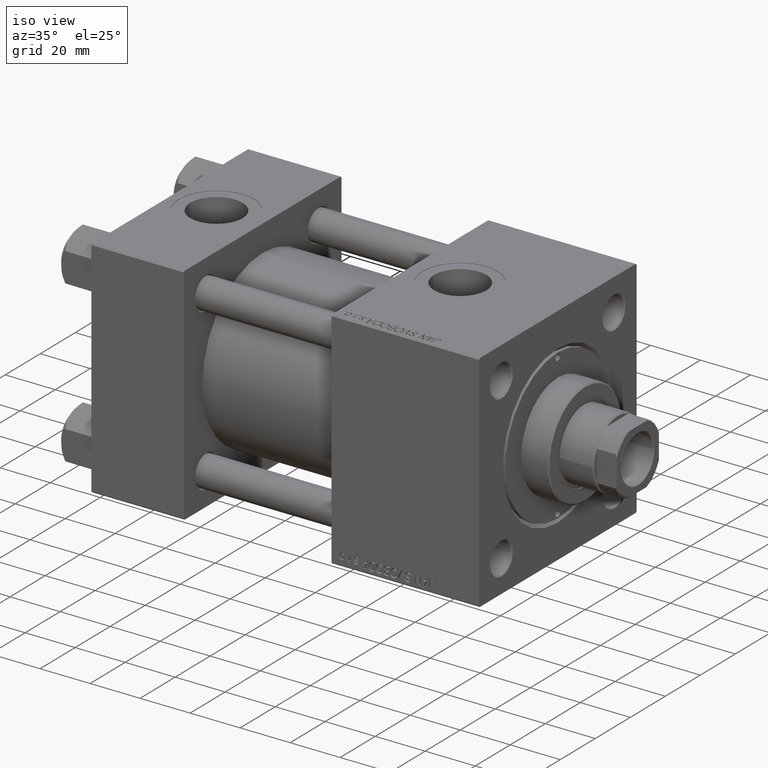
[diagram: clean part render]
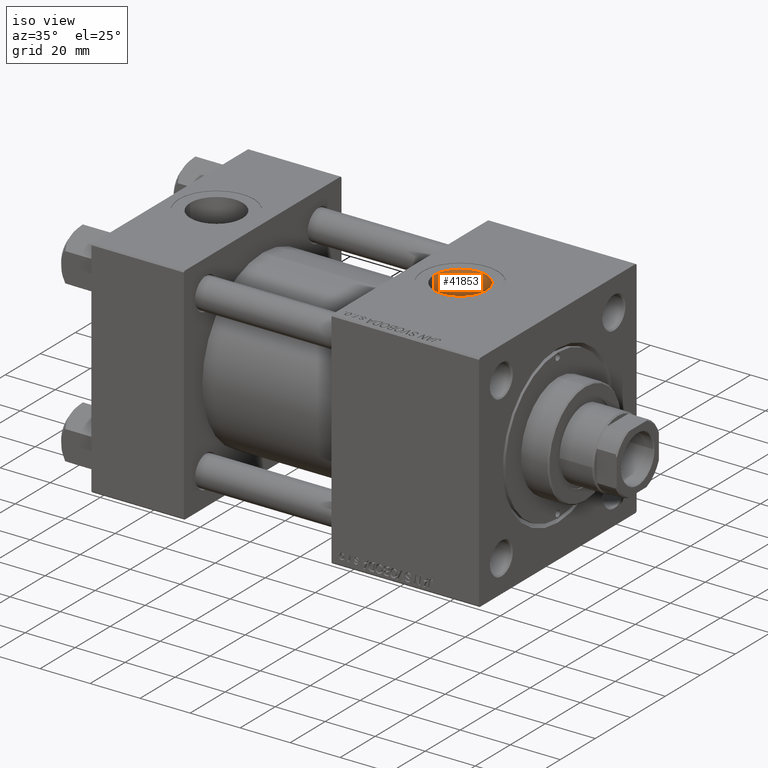
[diagram: same view with one face highlighted and labeled with its STEP entity id]
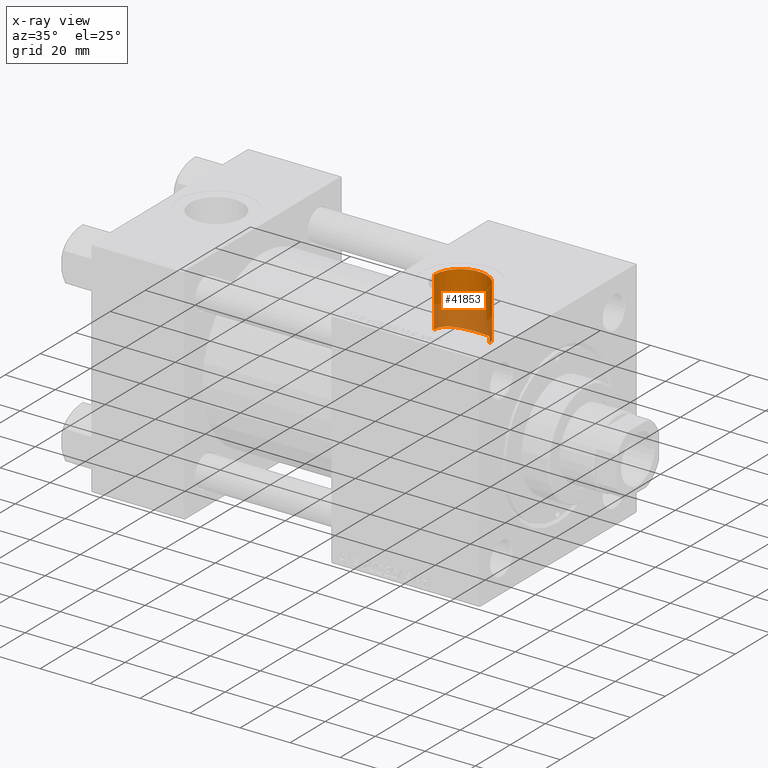
[diagram: x-ray of the same camera — body ghosted, the highlighted face saturated]
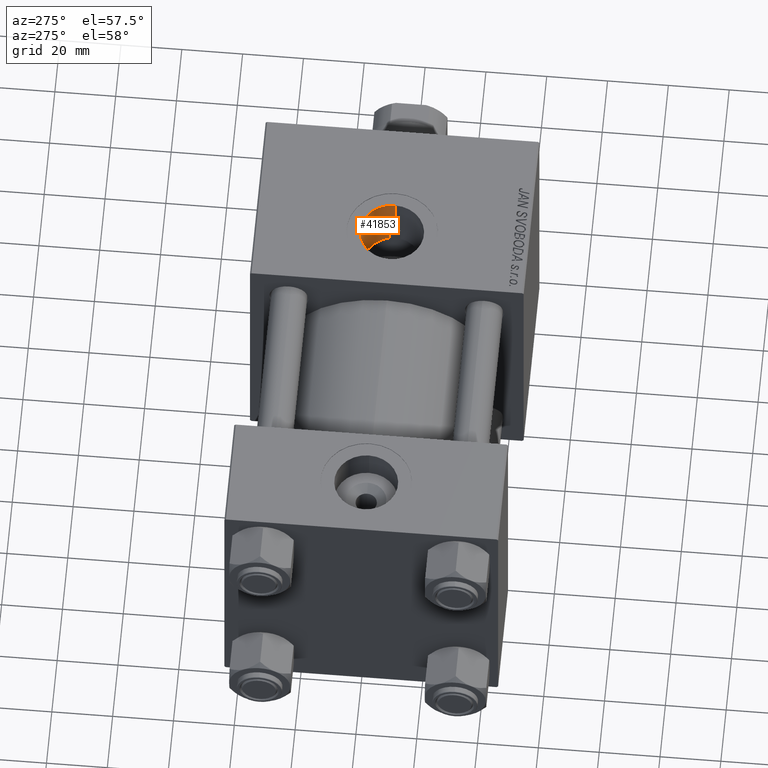
[diagram: same view with one face highlighted and labeled with its STEP entity id]
A machine part, iso view. The second image highlights one B-rep face of the part: STEP entity #41853.
The next image is the same camera in x-ray: the body ghosted, the highlighted face saturated — about 46% of this face is hidden behind the body in this view.
A second angle (auxiliary view) of the same face is appended — the face is thin or edge-on in the first view.
In plain terms, the highlighted cylindrical surface (edge-blend (fillet) strip) has radius 10.48 mm, axis along (0, 0, -1).
Its self-contained STEP definition (entity closure, byte-faithful):
#1501 = CARTESIAN_POINT ( 'NONE',  ( 106.7671663617161357, 4.999617035179606539, 24.50132901008040065 ) ) ;
#2031 = AXIS2_PLACEMENT_3D ( 'NONE', #15118, #42357, #18955 ) ;
#2260 = CARTESIAN_POINT ( 'NONE',  ( 111.8851596875121572, 9.659575400900973108, 23.06052388961923683 ) ) ;
#2294 = DIRECTION ( 'NONE',  ( 0.000000000000000000, 0.000000000000000000, -1.000000000000000000 ) ) ;
#2605 = DIRECTION ( 'NONE',  ( 0.000000000000000000, 0.000000000000000000, -1.000000000000000000 ) ) ;
#3251 = ORIENTED_EDGE ( 'NONE', *, *, #5094, .F. ) ;
#3850 = CARTESIAN_POINT ( 'NONE',  ( 126.4800000000000040, 0.6446704584514654224, 30.00000000000000000 ) ) ;
#4224 = EDGE_CURVE ( 'NONE', #18537, #37850, #15749, .T. ) ;
#5094 = EDGE_CURVE ( 'NONE', #18537, #5298, #46533, .T. ) ;
#5298 = VERTEX_POINT ( 'NONE', #15849 ) ;
#5824 = CARTESIAN_POINT ( 'NONE',  ( 110.7478055748506875, 9.074580334331647791, 23.29559678875702744 ) ) ;
#6323 = CARTESIAN_POINT ( 'NONE',  ( 120.4188195642436199, 9.508309770353220003, 23.12177175093559001 ) ) ;
#6573 = CARTESIAN_POINT ( 'NONE',  ( 125.0727601258625157, 5.255426041479307919, 24.44298397004090262 ) ) ;
#6596 = ORIENTED_EDGE ( 'NONE', *, *, #39931, .F. ) ;
#7347 = ORIENTED_EDGE ( 'NONE', *, *, #4224, .T. ) ;
#9146 = CARTESIAN_POINT ( 'NONE',  ( 105.8381471228398283, 2.583199243602494199, 24.86817457876016491 ) ) ;
#9906 = CARTESIAN_POINT ( 'NONE',  ( 117.6386177692833286, 10.37204485282558331, 22.74698456315752182 ) ) ;
#10162 = CARTESIAN_POINT ( 'NONE',  ( 121.2812565894447232, 9.074845065222547191, 23.29687364020410811 ) ) ;
#11288 = CARTESIAN_POINT ( 'NONE',  ( 105.5199999999999960, -6.938893903907227589E-15, 44.79999999999999005 ) ) ;
#11962 = CARTESIAN_POINT ( 'NONE',  ( 109.1687481271819706, 7.973357901501731071, 23.69796365038536834 ) ) ;
#12217 = CARTESIAN_POINT ( 'NONE',  ( 105.5199999999999960, 3.061768933645607322E-15, 25.00000000000000000 ) ) ;
#12244 = VECTOR ( 'NONE', #17234, 1000.000000000000000 ) ;
#13230 = CARTESIAN_POINT ( 'NONE',  ( 120.1216041761687165, 9.640975358095740688, 23.06660230998516070 ) ) ;
#13427 = VERTEX_POINT ( 'NONE', #29295 ) ;
#14002 = CARTESIAN_POINT ( 'NONE',  ( 119.5162921391537054, 9.877839664245765761, 22.96616710619939994 ) ) ;
#14036 = CARTESIAN_POINT ( 'NONE',  ( 105.5199999999999960, -6.938893903907227589E-15, 67.79999999999999716 ) ) ;
#14245 = CARTESIAN_POINT ( 'NONE',  ( 124.1771732855569894, 6.585514499373144481, 24.12201144741169401 ) ) ;
#14334 = CARTESIAN_POINT ( 'NONE',  ( 116.0000000000000000, -6.938893903907227589E-15, 67.79999999999999716 ) ) ;
#15118 = CARTESIAN_POINT ( 'NONE',  ( 116.0000000000000000, -6.938893903907227589E-15, 44.79999999999999005 ) ) ;
#15749 = B_SPLINE_CURVE_WITH_KNOTS ( 'NONE', 3,
 ( #46163, #42830, #3850, #38274 ),
 .UNSPECIFIED., .F., .F.,
 ( 4, 4 ),
 ( 0.000000000000000000, 0.001934011375354386698 ),
 .UNSPECIFIED. ) ;
#15849 = CARTESIAN_POINT ( 'NONE',  ( 126.2999999999999972, 1.934011375354389939, 24.92507973909010488 ) ) ;
#16047 = CARTESIAN_POINT ( 'NONE',  ( 105.5356230239824953, 0.6585730766822409654, 24.99343936272600430 ) ) ;
#17234 = DIRECTION ( 'NONE',  ( 0.000000000000000000, 0.000000000000000000, -1.000000000000000000 ) ) ;
#17254 = ORIENTED_EDGE ( 'NONE', *, *, #21007, .T. ) ;
#17826 = CARTESIAN_POINT ( 'NONE',  ( 113.4226261123151716, 10.16335071941091073, 22.84110205403496252 ) ) ;
#18076 = CARTESIAN_POINT ( 'NONE',  ( 110.2019733445123819, 8.735928194877923048, 23.42469629605734127 ) ) ;
#18537 = VERTEX_POINT ( 'NONE', #34829 ) ;
#18955 = DIRECTION ( 'NONE',  ( 1.000000000000000000, 0.000000000000000000, 0.000000000000000000 ) ) ;
#19971 = ORIENTED_EDGE ( 'NONE', *, *, #36968, .F. ) ;
#20027 = VERTEX_POINT ( 'NONE', #30068 ) ;
#20139 = CARTESIAN_POINT ( 'NONE',  ( 106.1232496530287648, 3.519319470400923411, 24.75293856241372836 ) ) ;
#20219 = B_SPLINE_CURVE_WITH_KNOTS ( 'NONE', 3,
 ( #12217, #20393, #16047, #23933, #24691, #35900, #9146, #36412, #20139, #40217, #1501, #31316, #35641, #46857, #11962, #33341, #18076, #5824, #33595, #2260, #44815, #17826, #41476, #45067, #29523, #40734, #48896, #9906, #37171, #28775, #14002, #13230, #6323, #10162, #48385, #25706, #44302, #25205, #49146, #14245, #29767, #6573, #21404, #36921, #25450, #41234, #21892, #32582 ),
 .UNSPECIFIED., .F., .F.,
 ( 4, 2, 2, 2, 2, 2, 2, 2, 2, 2, 2, 2, 2, 2, 2, 2, 2, 2, 2, 2, 2, 2, 2, 4 ),
 ( 0.03121016949216451342, 0.03218464452383351659, 0.03315911955550251977, 0.03413359458717152989, 0.03510806961884053307, 0.03705701968217853248, 0.03900596974551652496, 0.04095491980885451744, 0.04192939484052350674, 0.04290386987219248216, 0.04485281993553048852, 0.04582729496719946394, 0.04680176999886843936, 0.04875072006220640408, 0.05069967012554435493, 0.05167414515721335810, 0.05264862018888236128, 0.05459757025222039539, 0.05557204528388942633, 0.05654652031555845726, 0.05849547037889651913, 0.05946994541056553618, 0.06044442044223456711, 0.06239337050557263592 ),
 .UNSPECIFIED. ) ;
#20393 = CARTESIAN_POINT ( 'NONE',  ( 105.5200000000000102, 0.3287850015386533653, 25.00000000000001066 ) ) ;
#21007 = EDGE_CURVE ( 'NONE', #20027, #5298, #20219, .T. ) ;
#21404 = CARTESIAN_POINT ( 'NONE',  ( 125.2312790006573948, 4.971677288869586597, 24.50241663594839991 ) ) ;
#21892 = CARTESIAN_POINT ( 'NONE',  ( 126.1785022418928435, 2.581074223304206772, 24.87487220027363222 ) ) ;
#22241 = LINE ( 'NONE', #34180, #12244 ) ;
#22473 = CYLINDRICAL_SURFACE ( 'NONE', #30178, 10.48000000000000398 ) ;
#23360 = DIRECTION ( 'NONE',  ( 0.000000000000000000, 0.000000000000000000, -1.000000000000000000 ) ) ;
#23933 = CARTESIAN_POINT ( 'NONE',  ( 105.5968747370656189, 1.308391668130473473, 24.96785615383025814 ) ) ;
#24691 = CARTESIAN_POINT ( 'NONE',  ( 105.6424818341990459, 1.630161534427958081, 24.94884296524732292 ) ) ;
#25205 = CARTESIAN_POINT ( 'NONE',  ( 123.3095492883835362, 7.516882943737513756, 23.84424818912263078 ) ) ;
#25450 = CARTESIAN_POINT ( 'NONE',  ( 125.6493108754359298, 4.101772300320491560, 24.66307610818221718 ) ) ;
#25706 = CARTESIAN_POINT ( 'NONE',  ( 122.5884970808938448, 8.156264676250790657, 23.63297485160378031 ) ) ;
#28775 = CARTESIAN_POINT ( 'NONE',  ( 119.2095190560418416, 9.981685871371876573, 22.92107120454307534 ) ) ;
#29295 = CARTESIAN_POINT ( 'NONE',  ( 126.4800000000000040, -5.655464058400802100E-15, 44.79999999999999005 ) ) ;
#29523 = CARTESIAN_POINT ( 'NONE',  ( 114.7045387977235436, 10.40468030871039318, 22.73199781475518222 ) ) ;
#29690 = EDGE_LOOP ( 'NONE', ( #6596, #19971, #40871, #17254, #3251, #7347 ) ) ;
#29767 = CARTESIAN_POINT ( 'NONE',  ( 124.5621068483242055, 6.077585296273588789, 24.25652138941319436 ) ) ;
#29860 = DIRECTION ( 'NONE',  ( -1.000000000000000000, 0.000000000000000000, 0.000000000000000000 ) ) ;
#30068 = CARTESIAN_POINT ( 'NONE',  ( 105.5199999999999960, 3.061768933645607322E-15, 25.00000000000000000 ) ) ;
#30178 = AXIS2_PLACEMENT_3D ( 'NONE', #14334, #2605, #29860 ) ;
#31316 = CARTESIAN_POINT ( 'NONE',  ( 107.4454009048542815, 6.087710720132601061, 24.25388776972977567 ) ) ;
#32582 = CARTESIAN_POINT ( 'NONE',  ( 126.2999999999999972, 1.934011375354389939, 24.92507973909010488 ) ) ;
#33341 = CARTESIAN_POINT ( 'NONE',  ( 109.9349178649771375, 8.552642181762106333, 23.49243050560861690 ) ) ;
#33595 = CARTESIAN_POINT ( 'NONE',  ( 111.0272351189628068, 9.230614084050129620, 23.23401715973118087 ) ) ;
#34180 = CARTESIAN_POINT ( 'NONE',  ( 126.4800000000000040, -5.655464058400801311E-15, 67.79999999999999716 ) ) ;
#34829 = CARTESIAN_POINT ( 'NONE',  ( 126.2999999999999972, 1.934011375354389939, 29.93759509379468753 ) ) ;
#35641 = CARTESIAN_POINT ( 'NONE',  ( 107.8384609629549260, 6.604990798069032110, 24.11668345353552212 ) ) ;
#35900 = CARTESIAN_POINT ( 'NONE',  ( 105.7631178406935675, 2.267565399210858423, 24.89900277306706755 ) ) ;
#36412 = CARTESIAN_POINT ( 'NONE',  ( 106.0178759252195277, 3.208328409761893596, 24.79527483265623644 ) ) ;
#36921 = CARTESIAN_POINT ( 'NONE',  ( 125.5190933919545273, 4.395560038025625893, 24.61229465162431040 ) ) ;
#36968 = EDGE_CURVE ( 'NONE', #37815, #13427, #41924, .T. ) ;
#37171 = CARTESIAN_POINT ( 'NONE',  ( 118.2768204000753371, 10.25012929133886352, 22.80291826729093074 ) ) ;
#37226 = VECTOR ( 'NONE', #23360, 1000.000000000000000 ) ;
#37815 = VERTEX_POINT ( 'NONE', #11288 ) ;
#37850 = VERTEX_POINT ( 'NONE', #43112 ) ;
#38274 = CARTESIAN_POINT ( 'NONE',  ( 126.4800000000000040, 3.352779466116923030E-15, 30.00000000000000000 ) ) ;
#39931 = EDGE_CURVE ( 'NONE', #13427, #37850, #22241, .T. ) ;
#40217 = CARTESIAN_POINT ( 'NONE',  ( 106.4784251406594962, 4.426244458063012921, 24.61265260054171833 ) ) ;
#40734 = CARTESIAN_POINT ( 'NONE',  ( 115.6733399539854474, 10.49497315035231182, 22.69052503754342354 ) ) ;
#40871 = ORIENTED_EDGE ( 'NONE', *, *, #49471, .T. ) ;
#41234 = CARTESIAN_POINT ( 'NONE',  ( 125.9991942442599822, 3.203101616166324828, 24.80136239248102825 ) ) ;
#41476 = CARTESIAN_POINT ( 'NONE',  ( 113.7430657101277376, 10.23927097569745648, 22.80705355501167020 ) ) ;
#41853 = ADVANCED_FACE ( 'NONE', ( #45640 ), #22473, .F. ) ;
#41924 = CIRCLE ( 'NONE', #2031, 10.48000000000000398 ) ;
#42357 = DIRECTION ( 'NONE',  ( -0.000000000000000000, -0.000000000000000000, -1.000000000000000000 ) ) ;
#42715 = CARTESIAN_POINT ( 'NONE',  ( 126.2999999999999972, 1.934011375354389939, 67.79999999999999716 ) ) ;
#42830 = CARTESIAN_POINT ( 'NONE',  ( 126.4210485436893237, 1.289340916902927958, 29.97924172559974210 ) ) ;
#43112 = CARTESIAN_POINT ( 'NONE',  ( 126.4800000000000040, 3.352779466116923030E-15, 30.00000000000000000 ) ) ;
#44246 = VECTOR ( 'NONE', #2294, 1000.000000000000000 ) ;
#44302 = CARTESIAN_POINT ( 'NONE',  ( 122.8367452354718239, 7.949336738018656590, 23.70358087546936332 ) ) ;
#44815 = CARTESIAN_POINT ( 'NONE',  ( 112.4831019260238776, 9.893757827435578633, 22.95979354450773968 ) ) ;
#45067 = CARTESIAN_POINT ( 'NONE',  ( 114.3830684219185798, 10.35963101535786102, 22.75263517047128303 ) ) ;
#45102 = LINE ( 'NONE', #14036, #44246 ) ;
#45640 = FACE_OUTER_BOUND ( 'NONE', #29690, .T. ) ;
#46163 = CARTESIAN_POINT ( 'NONE',  ( 126.2999999999999972, 1.934011375354389939, 29.93759509379468753 ) ) ;
#46533 = LINE ( 'NONE', #42715, #37226 ) ;
#46857 = CARTESIAN_POINT ( 'NONE',  ( 108.6990350769791149, 7.545365073248964549, 23.83920699503248386 ) ) ;
#48385 = CARTESIAN_POINT ( 'NONE',  ( 121.8230811921165895, 8.736836638396551891, 23.42725551097151637 ) ) ;
#48896 = CARTESIAN_POINT ( 'NONE',  ( 116.3268763252384161, 10.49559595691618874, 22.69024210216181459 ) ) ;
#49146 = CARTESIAN_POINT ( 'NONE',  ( 123.5346559080208522, 7.291128265817105714, 23.91442154817949728 ) ) ;
#49471 = EDGE_CURVE ( 'NONE', #37815, #20027, #45102, .T. ) ;